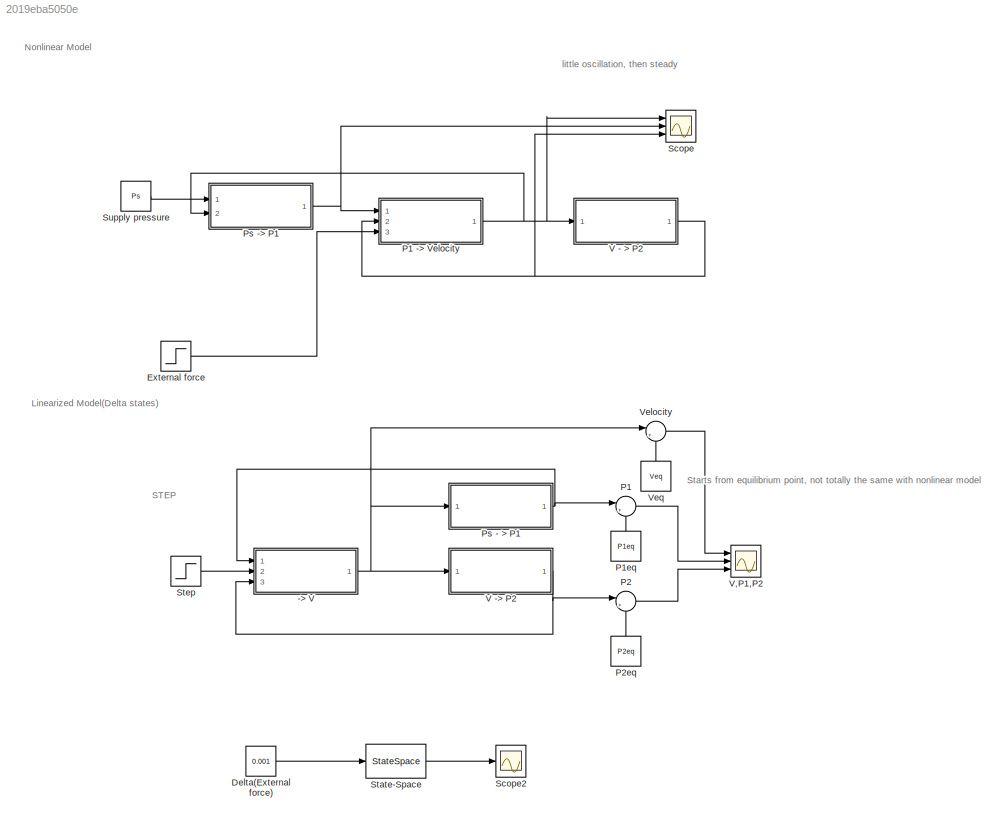
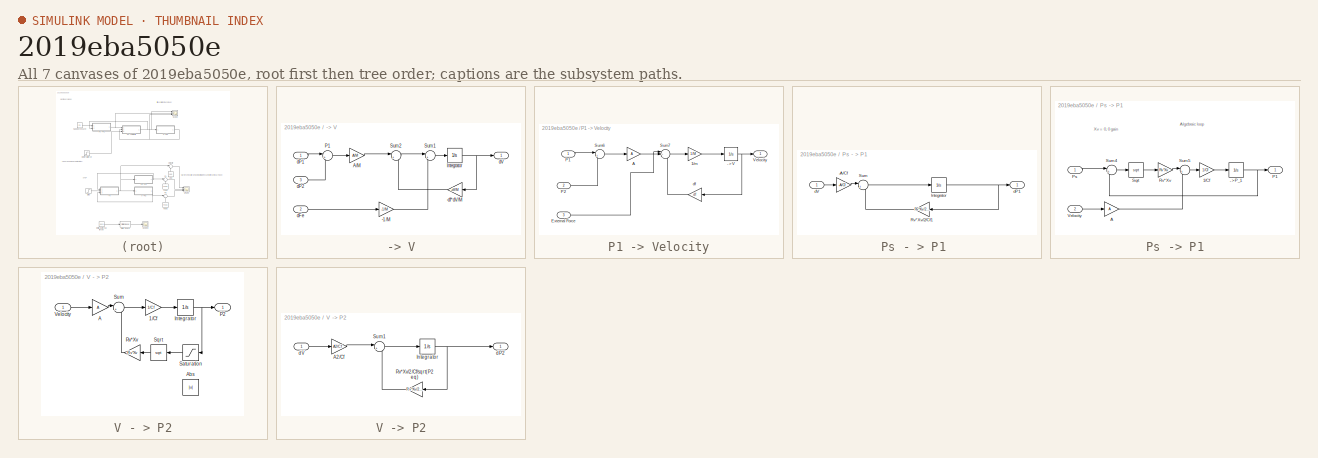
[diagram: thumbnail index - all 7 canvases of the model, root first then tree order]
MODEL slx_2019eba5050e
KIND model
CONFIG AbsTol = auto
CONFIG EnableMultiTasking = off
CONFIG FixedStep = auto
CONFIG MaxStep = auto
CONFIG MinStep = auto
CONFIG RelTol = 1e-3
CONFIG SampleTimeConstraint = Unconstrained
CONFIG Solver = ode23
CONFIG SolverName = ode23
CONFIG StartTime = 0.0
CONFIG StopTime = 10.0
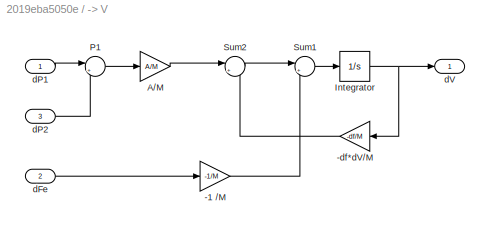
BLOCK [SubSystem] -> V
  Ports = [3, 1]
  RequestExecContextInheritance = off
  Variant = off
BLOCK [Gain] -> V/-1 //M
  Gain = -1/M
  OutDataTypeStr = Inherit: Inherit via internal rule
  ParamDataTypeStr = Inherit: Inherit via internal rule
  SaturateOnIntegerOverflow = off
BLOCK [Gain] -> V/-df*dV//M
  Gain = -df/M
  OutDataTypeStr = Inherit: Inherit via internal rule
  ParamDataTypeStr = Inherit: Inherit via internal rule
  SaturateOnIntegerOverflow = off
BLOCK [Gain] -> V/A//M
  Gain = A/M
  OutDataTypeStr = Inherit: Inherit via internal rule
  ParamDataTypeStr = Inherit: Inherit via internal rule
  SaturateOnIntegerOverflow = off
BLOCK [Integrator] -> V/Integrator
  Ports = [1, 1]
BLOCK [Sum] -> V/P1
  IconShape = round
  InputSameDT = off
  Inputs = |+-
  OutDataTypeStr = Inherit: Inherit via internal rule
  Ports = [2, 1]
  SaturateOnIntegerOverflow = off
BLOCK [Sum] -> V/Sum1
  IconShape = round
  InputSameDT = off
  Inputs = |+-
  OutDataTypeStr = Inherit: Inherit via internal rule
  Ports = [2, 1]
  SaturateOnIntegerOverflow = off
BLOCK [Sum] -> V/Sum2
  IconShape = round
  InputSameDT = off
  Inputs = |+-
  OutDataTypeStr = Inherit: Inherit via internal rule
  Ports = [2, 1]
  SaturateOnIntegerOverflow = off
BLOCK [Inport] -> V/dFe
  IconDisplay = Port number
  Port = 2
BLOCK [Inport] -> V/dP1
  IconDisplay = Port number
BLOCK [Inport] -> V/dP2
  IconDisplay = Port number
  Port = 3
BLOCK [Outport] -> V/dV 
  IconDisplay = Port number
BLOCK [Constant] Delta(External force)
  Commented = on
  Value = 0.001
BLOCK [Step] External force
  After = 0
  SampleTime = 0
BLOCK [Sum] P1
  IconShape = round
  InputSameDT = off
  Inputs = |++
  OutDataTypeStr = Inherit: Inherit via internal rule
  Ports = [2, 1]
  SaturateOnIntegerOverflow = off
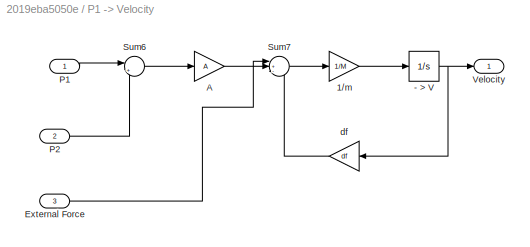
BLOCK [SubSystem] P1 -> Velocity
  Ports = [3, 1]
  RequestExecContextInheritance = off
  Variant = off
BLOCK [Integrator] P1 -> Velocity/- > V
  Ports = [1, 1]
BLOCK [Gain] P1 -> Velocity/1//m
  Gain = 1/M
  OutDataTypeStr = Inherit: Inherit via internal rule
  ParamDataTypeStr = Inherit: Inherit via internal rule
  SaturateOnIntegerOverflow = off
BLOCK [Gain] P1 -> Velocity/A
  Gain = A
  OutDataTypeStr = Inherit: Inherit via internal rule
  ParamDataTypeStr = Inherit: Inherit via internal rule
  SaturateOnIntegerOverflow = off
BLOCK [Inport] P1 -> Velocity/External Force
  IconDisplay = Port number
  Port = 3
BLOCK [Inport] P1 -> Velocity/P1
  IconDisplay = Port number
BLOCK [Inport] P1 -> Velocity/P2
  IconDisplay = Port number
  Port = 2
BLOCK [Sum] P1 -> Velocity/Sum6
  IconShape = round
  InputSameDT = off
  Inputs = |+-
  OutDataTypeStr = Inherit: Inherit via internal rule
  Ports = [2, 1]
  SaturateOnIntegerOverflow = off
BLOCK [Sum] P1 -> Velocity/Sum7
  IconShape = round
  InputSameDT = off
  Inputs = |+--
  OutDataTypeStr = Inherit: Inherit via internal rule
  Ports = [3, 1]
  SaturateOnIntegerOverflow = off
BLOCK [Outport] P1 -> Velocity/Velocity
  IconDisplay = Port number
BLOCK [Gain] P1 -> Velocity/df
  Gain = df
  OutDataTypeStr = Inherit: Inherit via internal rule
  ParamDataTypeStr = Inherit: Inherit via internal rule
  SaturateOnIntegerOverflow = off
BLOCK [Constant] P1eq
  Value = P1eq
BLOCK [Sum] P2
  IconShape = round
  InputSameDT = off
  Inputs = |++
  LockScale = on
  OutDataTypeStr = Inherit: Inherit via internal rule
  Ports = [2, 1]
  SaturateOnIntegerOverflow = off
BLOCK [Constant] P2eq
  Value = P2eq
BLOCK [SubSystem] Ps - > P1 
  Ports = [1, 1]
  RequestExecContextInheritance = off
  Variant = off
BLOCK [Gain] Ps - > P1 /-A//Cf
  Gain = -A/Cf
  OutDataTypeStr = Inherit: Inherit via internal rule
  ParamDataTypeStr = Inherit: Inherit via internal rule
  SaturateOnIntegerOverflow = off
BLOCK [Integrator] Ps - > P1 /Integrator
  Ports = [1, 1]
BLOCK [Gain] Ps - > P1 /Rv*Xv//2//Cf1
  Gain = Rv*Xv/2/Cf/sqrt(Ps-P1eq)
  OutDataTypeStr = Inherit: Inherit via internal rule
  ParamDataTypeStr = Inherit: Inherit via internal rule
  SaturateOnIntegerOverflow = off
BLOCK [Sum] Ps - > P1 /Sum
  IconShape = round
  InputSameDT = off
  Inputs = |+-
  OutDataTypeStr = Inherit: Inherit via internal rule
  Ports = [2, 1]
  SaturateOnIntegerOverflow = off
BLOCK [Outport] Ps - > P1 /dP1 
  IconDisplay = Port number
BLOCK [Inport] Ps - > P1 /dV
  IconDisplay = Port number
BLOCK [SubSystem] Ps -> P1
  Ports = [2, 1]
  RequestExecContextInheritance = off
  Variant = off
BLOCK [Integrator] Ps -> P1/- >P_1 
  Ports = [1, 1]
BLOCK [Gain] Ps -> P1/1//Cf
  Gain = 1/Cf
  OutDataTypeStr = Inherit: Inherit via internal rule
  ParamDataTypeStr = Inherit: Inherit via internal rule
  SaturateOnIntegerOverflow = off
BLOCK [Gain] Ps -> P1/A
  Gain = A
  OutDataTypeStr = Inherit: Inherit via internal rule
  ParamDataTypeStr = Inherit: Inherit via internal rule
  SaturateOnIntegerOverflow = off
BLOCK [Outport] Ps -> P1/P1
  IconDisplay = Port number
BLOCK [Inport] Ps -> P1/Ps 
  IconDisplay = Port number
BLOCK [Gain] Ps -> P1/Rv*Xv
  Gain = Rv*Xv
  OutDataTypeStr = Inherit: Inherit via internal rule
  ParamDataTypeStr = Inherit: Inherit via internal rule
  SaturateOnIntegerOverflow = off
BLOCK [Sqrt] Ps -> P1/Sqrt
BLOCK [Sum] Ps -> P1/Sum4
  IconShape = round
  InputSameDT = off
  Inputs = |+-
  OutDataTypeStr = Inherit: Inherit via internal rule
  Ports = [2, 1]
  SaturateOnIntegerOverflow = off
BLOCK [Sum] Ps -> P1/Sum5
  IconShape = round
  InputSameDT = off
  Inputs = |+-
  OutDataTypeStr = Inherit: Inherit via internal rule
  Ports = [2, 1]
  SaturateOnIntegerOverflow = off
BLOCK [Inport] Ps -> P1/Velocity
  IconDisplay = Port number
  Port = 2
BLOCK [Scope] Scope
  NumInputPorts = 3
  Ports = [3]
  ScopeSpecificationString = Simulink.scopes.TimeScopeBlockCfg('CurrentConfiguration', extmgr.ConfigurationSet(extmgr.Configuration('Core','General UI',true),extmgr.Configuration('Core','Source UI',true),extmgr.Configuration('Sources','WiredSimulink',true),extmgr.Configuration('Visuals','Time Domain',true,'SerializedDisplays',{struct('MinYLimReal','1.5802','MaxYLimReal','1.77226','YLabelReal','','MinYLimMag','1.5802','MaxYLim...<+2742ch>
BLOCK [Scope] Scope2
  Commented = on
  NumInputPorts = 1
  Ports = [1]
  ScopeSpecificationString = Simulink.scopes.TimeScopeBlockCfg('CurrentConfiguration', extmgr.ConfigurationSet(extmgr.Configuration('Core','General UI',true),extmgr.Configuration('Core','Source UI',true),extmgr.Configuration('Sources','WiredSimulink',true,'DataLoggingVariableName','ScopeData1'),extmgr.Configuration('Visuals','Time Domain',true,'SerializedDisplays',{struct('MinYLimReal','-8662684229.20277','MaxYLimReal','86626...<+1573ch>
BLOCK [StateSpace] State-Space
  A = a
  B = b
  C = c
  Commented = on
  ContinuousStateAttributes = 'Velocity.P1.P2'
  D = d
  Ports = [1, 1]
  X0 = 0
BLOCK [Step] Step
  After = 0.01
  SampleTime = 0
BLOCK [Constant] Supply pressure
  Value = Ps
BLOCK [SubSystem] V - > P2
  Ports = [1, 1]
  RequestExecContextInheritance = off
  Variant = off
BLOCK [Gain] V - > P2/1//Cf
  Gain = 1/Cf
  OutDataTypeStr = Inherit: Inherit via internal rule
  ParamDataTypeStr = Inherit: Inherit via internal rule
  SaturateOnIntegerOverflow = off
BLOCK [Gain] V - > P2/A
  Gain = A
  OutDataTypeStr = Inherit: Inherit via internal rule
  ParamDataTypeStr = Inherit: Inherit via internal rule
  SaturateOnIntegerOverflow = off
BLOCK [Abs] V - > P2/Abs
  SaturateOnIntegerOverflow = off
BLOCK [Integrator] V - > P2/Integrator
  Ports = [1, 1]
BLOCK [Outport] V - > P2/P2
  IconDisplay = Port number
BLOCK [Gain] V - > P2/Rv*Xv
  Gain = Rv*Xv
  OutDataTypeStr = Inherit: Inherit via internal rule
  ParamDataTypeStr = Inherit: Inherit via internal rule
  SaturateOnIntegerOverflow = off
BLOCK [Saturate] V - > P2/Saturation
  InputPortMap = u0
  LowerLimit = 0
  Ports = [1, 1]
  UpperLimit = Ps
  ZeroCross = off
BLOCK [Sqrt] V - > P2/Sqrt
BLOCK [Sum] V - > P2/Sum
  IconShape = round
  InputSameDT = off
  Inputs = |+-
  OutDataTypeStr = Inherit: Inherit via internal rule
  Ports = [2, 1]
  SaturateOnIntegerOverflow = off
BLOCK [Inport] V - > P2/Velocity
  IconDisplay = Port number
BLOCK [SubSystem] V -> P2
  Ports = [1, 1]
  RequestExecContextInheritance = off
  Variant = off
BLOCK [Gain] V -> P2/A2//Cf
  Gain = A2/Cf
  OutDataTypeStr = Inherit: Inherit via internal rule
  ParamDataTypeStr = Inherit: Inherit via internal rule
  SaturateOnIntegerOverflow = off
BLOCK [Integrator] V -> P2/Integrator
  Ports = [1, 1]
BLOCK [Gain] V -> P2/Rv*Xv//2//Cf//sqrt(P2eq)
  Gain = Rv*Xv/2/Cf/sqrt(P2eq)
  OutDataTypeStr = Inherit: Inherit via internal rule
  ParamDataTypeStr = Inherit: Inherit via internal rule
  SaturateOnIntegerOverflow = off
BLOCK [Sum] V -> P2/Sum1
  IconShape = round
  InputSameDT = off
  Inputs = |+-
  OutDataTypeStr = Inherit: Inherit via internal rule
  Ports = [2, 1]
  SaturateOnIntegerOverflow = off
BLOCK [Outport] V -> P2/dP2 
  IconDisplay = Port number
BLOCK [Inport] V -> P2/dV
  IconDisplay = Port number
BLOCK [Scope] V,P1,P2 
  NumInputPorts = 3
  Ports = [3]
  ScopeSpecificationString = Simulink.scopes.TimeScopeBlockCfg('CurrentConfiguration', extmgr.ConfigurationSet(extmgr.Configuration('Core','General UI',true),extmgr.Configuration('Core','Source UI',true),extmgr.Configuration('Sources','WiredSimulink',true,'DataLoggingVariableName','ScopeData1'),extmgr.Configuration('Visuals','Time Domain',true,'SerializedDisplays',{struct('MinYLimReal','1.74211959','MaxYLimReal','1.74211988',...<+2777ch>
BLOCK [Sum] Velocity
  IconShape = round
  InputSameDT = off
  Inputs = |++
  OutDataTypeStr = Inherit: Inherit via internal rule
  Ports = [2, 1]
  SaturateOnIntegerOverflow = off
BLOCK [Constant] Veq
  Value = Veq
ANNOTATION (root): Linearized Model(Delta states)
ANNOTATION (root): Nonlinear Model
ANNOTATION (root): Starts f rom equilibrium point, not totally the same with nonlinear model
ANNOTATION (root): STEP
ANNOTATION (root): little oscillation, then steady
ANNOTATION Ps -> P1: Algebraic loop
ANNOTATION Ps -> P1: Xv = 0, 0 gain
LINE -> V/-1 //M:1 -> -> V/Sum1:2
LINE -> V/-df*dV//M:1 -> -> V/Sum2:2
LINE -> V/A//M:1 -> -> V/Sum2:1
NET -> V/Integrator:1 -> -> V/-df*dV//M:1, -> V/dV :1
LINE -> V/P1:1 -> -> V/A//M:1
LINE -> V/Sum1:1 -> -> V/Integrator:1
LINE -> V/Sum2:1 -> -> V/Sum1:1
LINE -> V/dFe:1 -> -> V/-1 //M:1
LINE -> V/dP1:1 -> -> V/P1:1
LINE -> V/dP2:1 -> -> V/P1:2
NET -> V:1 -> Ps - > P1 :1, V -> P2:1, Velocity:1
LINE Delta(External force):1 -> State-Space:1
LINE External force:1 -> P1 -> Velocity:3
NET P1 -> Velocity/- > V:1 -> P1 -> Velocity/Velocity:1, P1 -> Velocity/df:1
LINE P1 -> Velocity/1//m:1 -> P1 -> Velocity/- > V:1
LINE P1 -> Velocity/A:1 -> P1 -> Velocity/Sum7:1
LINE P1 -> Velocity/External Force:1 -> P1 -> Velocity/Sum7:2
LINE P1 -> Velocity/P1:1 -> P1 -> Velocity/Sum6:1
LINE P1 -> Velocity/P2:1 -> P1 -> Velocity/Sum6:2
LINE P1 -> Velocity/Sum6:1 -> P1 -> Velocity/A:1
LINE P1 -> Velocity/Sum7:1 -> P1 -> Velocity/1//m:1
LINE P1 -> Velocity/df:1 -> P1 -> Velocity/Sum7:3
NET P1 -> Velocity:1 -> Ps -> P1:2, Scope:1, V - > P2:1
LINE P1:1 -> V,P1,P2 :2
LINE P1eq:1 -> P1:2
LINE P2:1 -> V,P1,P2 :3
LINE P2eq:1 -> P2:2
LINE Ps - > P1 /-A//Cf:1 -> Ps - > P1 /Sum:1
NET Ps - > P1 /Integrator:1 -> Ps - > P1 /Rv*Xv//2//Cf1:1, Ps - > P1 /dP1 :1
LINE Ps - > P1 /Rv*Xv//2//Cf1:1 -> Ps - > P1 /Sum:2
LINE Ps - > P1 /Sum:1 -> Ps - > P1 /Integrator:1
LINE Ps - > P1 /dV:1 -> Ps - > P1 /-A//Cf:1
NET Ps - > P1 :1 -> -> V:1, P1:1
NET Ps -> P1/- >P_1 :1 -> Ps -> P1/P1:1, Ps -> P1/Sum4:2
LINE Ps -> P1/1//Cf:1 -> Ps -> P1/- >P_1 :1
LINE Ps -> P1/A:1 -> Ps -> P1/Sum5:2
LINE Ps -> P1/Ps :1 -> Ps -> P1/Sum4:1
LINE Ps -> P1/Rv*Xv:1 -> Ps -> P1/Sum5:1
LINE Ps -> P1/Sqrt:1 -> Ps -> P1/Rv*Xv:1
LINE Ps -> P1/Sum4:1 -> Ps -> P1/Sqrt:1
LINE Ps -> P1/Sum5:1 -> Ps -> P1/1//Cf:1
LINE Ps -> P1/Velocity:1 -> Ps -> P1/A:1
NET Ps -> P1:1 -> P1 -> Velocity:1, Scope:2
LINE State-Space:1 -> Scope2:1
LINE Step:1 -> -> V:2
LINE Supply pressure:1 -> Ps -> P1:1
LINE V - > P2/1//Cf:1 -> V - > P2/Integrator:1
LINE V - > P2/A:1 -> V - > P2/Sum:1
NET V - > P2/Integrator:1 -> V - > P2/P2:1, V - > P2/Saturation:1
LINE V - > P2/Rv*Xv:1 -> V - > P2/Sum:2
LINE V - > P2/Saturation:1 -> V - > P2/Sqrt:1
LINE V - > P2/Sqrt:1 -> V - > P2/Rv*Xv:1
LINE V - > P2/Sum:1 -> V - > P2/1//Cf:1
LINE V - > P2/Velocity:1 -> V - > P2/A:1
NET V - > P2:1 -> P1 -> Velocity:2, Scope:3
LINE V -> P2/A2//Cf:1 -> V -> P2/Sum1:1
NET V -> P2/Integrator:1 -> V -> P2/Rv*Xv//2//Cf//sqrt(P2eq):1, V -> P2/dP2 :1
LINE V -> P2/Rv*Xv//2//Cf//sqrt(P2eq):1 -> V -> P2/Sum1:2
LINE V -> P2/Sum1:1 -> V -> P2/Integrator:1
LINE V -> P2/dV:1 -> V -> P2/A2//Cf:1
NET V -> P2:1 -> -> V:3, P2:1
LINE Velocity:1 -> V,P1,P2 :1
LINE Veq:1 -> Velocity:2
note: NET lines group one-source signal fan-out (src -> all destinations, sorted); 1:1 wires keep LINE
